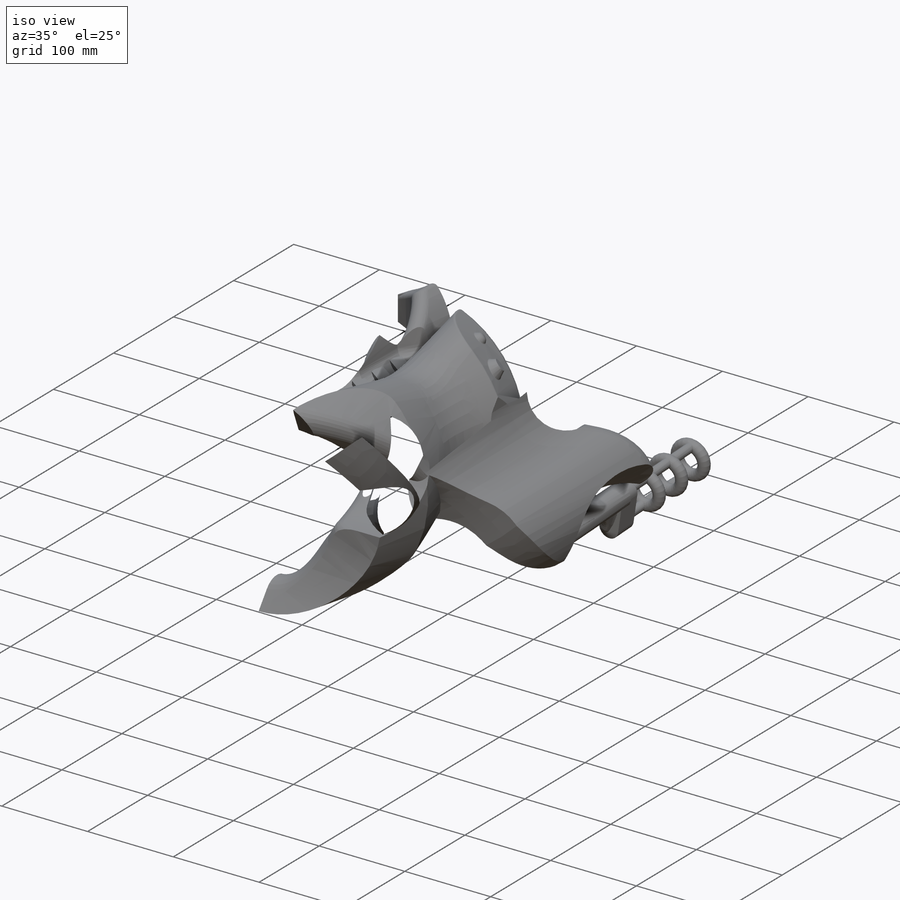
[diagram: iso view]
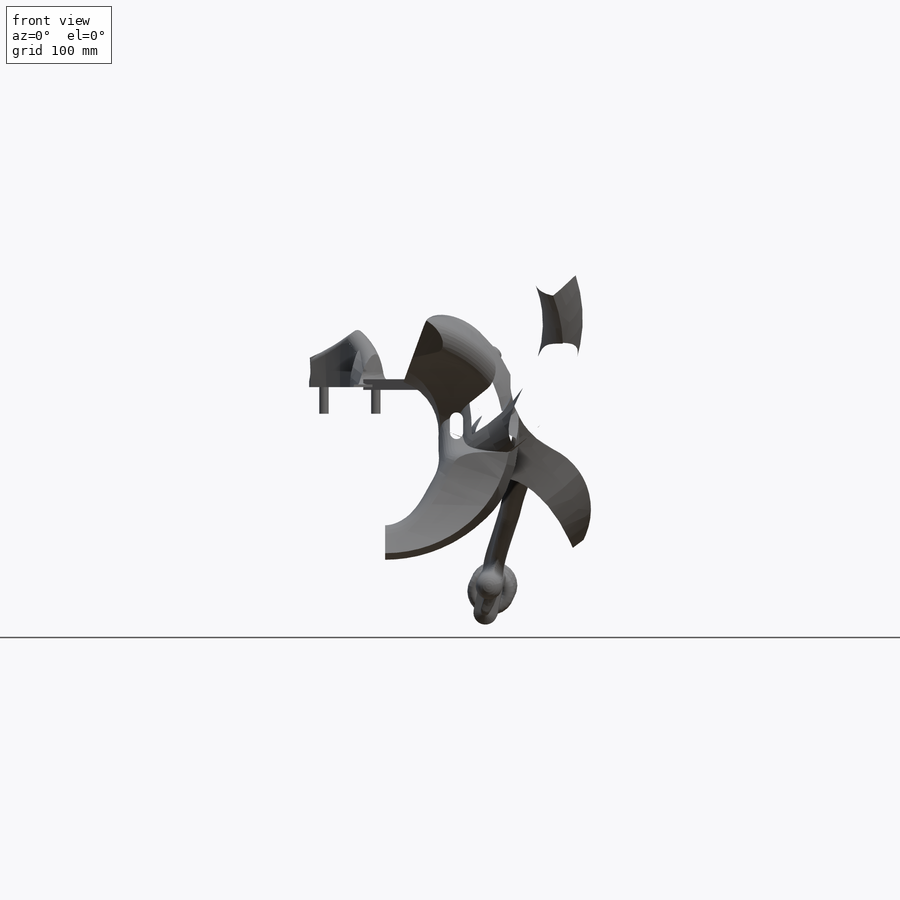
[diagram: front view]
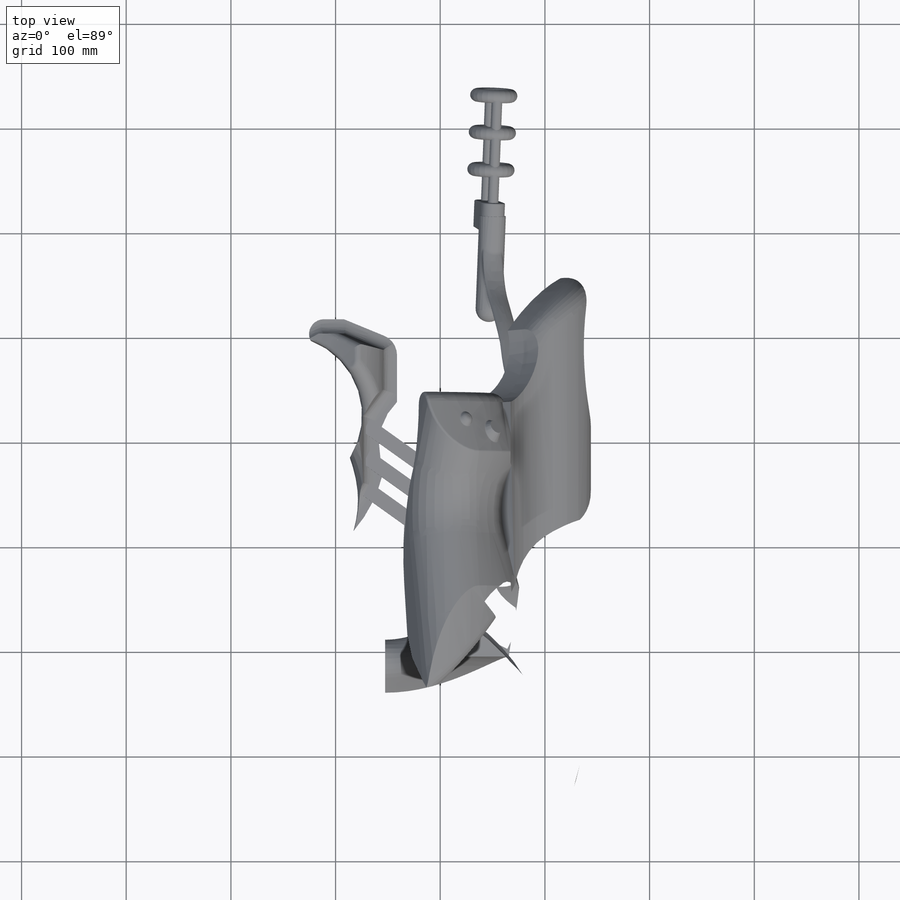
[diagram: top view]
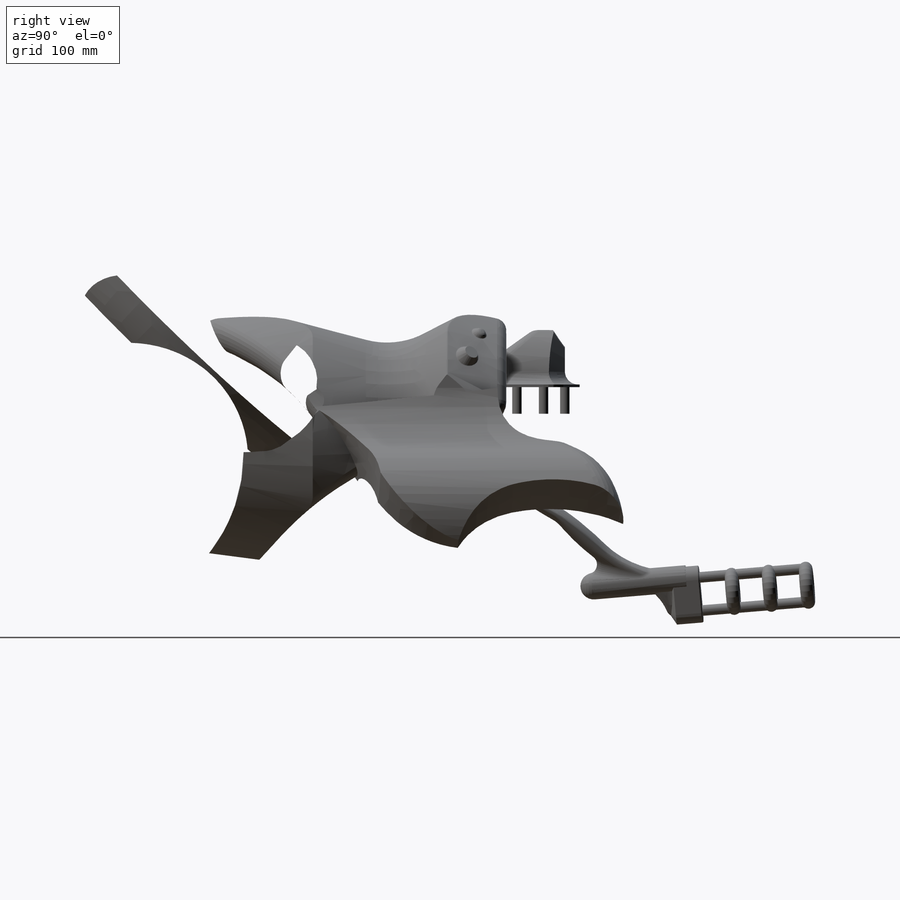
[diagram: right view]
SOLIDWORKS PART (.sldprt)
format: sldprt  version: not decoded by parser v0  size: 3,297,280 bytes
history: native  units: mm
features: sketch x32, fillet x27, mirror x15, plane x15, extrude x10, cut_extrude x9, revolve x4, material x1, cut_revolve x1, pattern_linear x1, sweep x1 (+13 scaffold rows collapsed)
feature tree (129):
  scaffold x13  (default folders/planes/origin — collapsed)
  material  "Material <not specified>"
  sketch  "Sketch1"  dims[D1=152.4mm D2=12.7mm]
  extrude  "Boss-Extrude1"  Depth=2.54mm
  sketch  "Sketch2"  dims[D4=8.89mm D12=304.8mm D16=127.0mm D17=57.15mm D1=49.53mm D2=20.32mm D3=25.4mm D5=88.9mm D6=19.05mm D7=20.32mm D8=88.9mm D9=25.4mm D10=127.0mm D11=19.05mm D13=12.7mm D14=63.5mm D15=44.45mm]
  extrude  "Boss-Extrude2"  Depth=2.54mm
  mirror  "Mirror1"
  sketch  "Sketch3"
  extrude  "Boss-Extrude3"  Depth=25.4mm
  sketch  "Sketch4"  dims[D1=12.7mm D2=12.7mm D3=38.1mm D4=25.4mm D5=19.05mm D6=63.5mm]
  revolve  "Revolve1"  Angle=180deg
  sketch  "Sketch5"  dims[c1.D6=177.8mm c1.D1=~43.702714mm c2.D1=30.0deg c2.D2=50.8mm c2.D3=11.43mm c2.D4=31.75mm c2.D5=30.48mm]
  cut_extrude  "Cut-Extrude1"  [1 undecoded]
  sketch  "Sketch6"  dims[D1=38.1mm D2=241.3mm]
  cut_revolve  "Cut-Revolve1"  Angle=360deg
  fillet  "Fillet1"  Radius=38.1mm
  fillet  "Fillet2"  Radius=12.7mm
  fillet  "Fillet3"  Radius=63.5mm
  sketch  "Sketch7"  dims[D1=6.35mm D2=12.7mm D3=63.5mm D4=88.9mm D6=30.48mm D5=3.0]
  extrude  "Boss-Extrude4"  Depth=10.16mm
  mirror  "Mirror2"
  sketch  "Sketch9"  dims[D1=76.2mm]
  cut_extrude  "Cut-Extrude2"  [1 undecoded]
  mirror  "Mirror3"
  fillet  "Fillet5"  Radius=10.16mm
  plane  "Plane1"  Offset=50.8mm
  sketch  "Sketch11"  dims[c1.D4=152.4mm c1.D7=~123.302563mm c1.D1=20.32mm c1.D2=12.7mm c1.D3=20.32mm c1.D5=101.6mm c1.D6=12.7mm c2.D7=19.05mm c2.D8=25.4mm c2.D9=63.5mm c2.D10=20.32mm c2.D11=20.32mm c2.D12=10.16mm c2.D13=57.15mm c2.D14=50.8mm c2.D15=12.7mm c2.D16=63.5mm c2.D17=38.1mm c2.D18=50.8mm c2.D19=200.66mm c2.D20=147.32mm]
  revolve  "Revolve3"  Angle=70deg
  mirror  "Mirror4"
  sketch  "Sketch12"  dims[D2=304.8mm D1=165.1mm]
  cut_extrude  "Cut-Extrude3"  Depth=10.16mm
  fillet  "Fillet6"  Radius=38.1mm
  fillet  "Fillet7"  Radius=12.7mm
  fillet  "Fillet9"  Radius=38.1mm
  fillet  "Fillet10"  Radius=2.54mm
  fillet  "Fillet11"  Radius=20.32mm
  plane  "Plane2"
  sketch  "Sketch13"  dims[D5=25.4mm D6=20.32mm D1=31.75mm D2=11.43mm D3=114.3mm D4=168.91mm]
  extrude  "Boss-Extrude5"  Depth=5.08mm
  fillet  "Fillet14"  Radius=5.08mm
  fillet  "Fillet15"  Radius=1.27mm
  mirror  "Mirror6"
  fillet  "Fillet16"  Radius=5.08mm
  fillet  "Fillet18"  Radius=1.27mm
  sketch  "Sketch14"  dims[D3=190.5mm D4=76.2mm D5=152.4mm D1=33.02mm D2=96.52mm D6=25.4mm]
  cut_extrude  "Cut-Extrude4"  Depth=2.54mm
  fillet  "Fillet19"  Radius=15.24mm
  fillet  "Fillet21"  Radius=15.24mm
  plane  "Plane3"
  sketch  "Sketch15"  dims[c1.D11=55.88mm c1.D12=152.4mm c1.D13=152.4mm c1.D14=101.6mm c1.D15=127.0mm c1.D1=63.5mm c1.D2=88.9mm c1.D3=76.2mm c1.D4=50.8mm c1.D5=50.8mm c1.D6=38.1mm c1.D7=106.68mm c1.D8=12.7mm c1.D9=50.8mm c1.D10=76.2mm c1.D16=~232.012585mm c2.D16=5.0deg]
  revolve  "Revolve4"  Angle=25deg
  plane  "Plane4"  Offset=76.2mm
  sketch  "Sketch16"  dims[D4=101.6mm D5=71.12mm D6=203.2mm D1=12.7mm D2=45.72mm D3=80.01mm D7=203.2mm D8=190.5mm]
  cut_extrude  "Cut-Extrude5"  [1 undecoded]
  mirror  "Mirror7"
  plane  "Plane5"  Offset=198.12mm
  sketch  "Sketch17"  dims[D1=254.0mm]
  cut_extrude  "Cut-Extrude6"  [1 undecoded]
  mirror  "Mirror8"
  fillet  "Fillet22"  Radius=27.94mm
  fillet  "Fillet23"  Radius=40.64mm
  fillet  "Fillet24"  Radius=12.7mm
  fillet  "Fillet25"  Radius=63.5mm
  fillet  "Fillet26"  Radius=19.05mm
  sketch  "Sketch18"  dims[D2=381.0mm D1=203.2mm]
  cut_extrude  "Cut-Extrude7"  Depth=157.48mm
  fillet  "Fillet27"  Radius=5.08mm
  sketch  "Sketch20"  dims[D1=177.8mm]
  plane  "Plane6"
  sketch  "Sketch21"  dims[c1.D5=381.0mm c1.D1=88.9mm c1.D2=101.6mm c1.D3=43.18mm c1.D4=50.8mm c2.D3=63.5mm c2.D4=19.05mm]
  plane  "Plane7"
  sketch  "Sketch22"  dims[c1.D3=8.89mm c1.D5=88.9mm c1.D6=~74.516886mm c1.D1=6.35mm c1.D2=31.75mm c1.D4=1.27mm c2.D6=~2.153812mm]
  plane  "Plane8"
  sketch  "Sketch23"  dims[c1.D3=11.43mm c1.D7=~10.724231mm c1.D8=9.652mm c1.D5=12.7mm c2.D8=~10.159316mm c2.D7=10.16mm c2.D1=25.4mm c2.D2=19.05mm c2.D4=3.81mm c2.D5=1.27mm c2.D6=2.54mm c3.D7=9.652mm c3.D8=9.271mm]
  plane  "Plane9"
  sketch  "Sketch24"  dims[D1=25.4mm D2=63.5mm D3=50.8mm]
  plane  "Plane10"
  sketch  "Sketch25"  dims[D2=152.4mm D1=12.7mm D3=8.89mm D4=11.43mm D5=76.2mm D6=54.61mm D7=0.254mm D8=1.27mm D9=6.35mm]
  mirror  "Mirror9"
  sketch  "Sketch26"  dims[D1=25.4mm]
  extrude  "Boss-Extrude6"  Depth=12.7mm
  mirror  "Mirror10"
  fillet  "Fillet28"  Radius=12.7mm
  fillet  "Fillet29"  Radius=10.16mm
  sketch  "Sketch27"  dims[D1=11.43mm]
  extrude  "Boss-Extrude7"  Depth=25.4mm
  mirror  "Mirror11"
  fillet  "Fillet30"  Radius=1.27mm
  sketch  "Sketch28"  dims[D1=10.16mm]
  extrude  "Boss-Extrude8"  Depth=101.6mm
  mirror  "Mirror12"
  plane  "Plane11"
  sketch  "Sketch29"  dims[D1=12.7mm]
  revolve  "Revolve5"  Angle=360deg
  pattern_linear  "LPattern1"  Count1=3 Count2=1 Spacing1=35.56mm Spacing2=2.54mm
  mirror  "Mirror13"
  plane  "Plane12"
  plane  "Plane13"  Offset=38.1mm
  sketch  "Sketch30"  dims[c1.D9=34.29mm c1.D10=44.45mm c1.D12=63.5mm c1.D13=50.8mm c1.D1=54.61mm c1.D2=19.05mm c1.D3=29.21mm c1.D4=76.2mm c1.D5=20.32mm c1.D6=19.05mm c1.D7=45.72mm c1.D8=50.8mm c1.D11=12.7mm c1.D14=~30.332993mm c2.D14=25.0deg]
  plane  "Plane14"
  sketch  "Sketch31"  dims[D5=228.6mm D1=2.54mm D2=21.59mm D3=11.43mm D4=215.9mm]
  sweep  "Sweep1"
  mirror  "Mirror15"
  sketch  "Sketch33"  dims[D2=304.8mm D4=114.3mm D1=21.59mm D3=101.6mm]
  cut_extrude  "Cut-Extrude9"  Depth=101.6mm
  fillet  "Fillet31"  Radius=6.35mm
  fillet  "Fillet32"  Radius=60.96mm
  plane  "Plane15"  Offset=231.14mm
  sketch  "Sketch34"  dims[D1=25.4mm D2=12.7mm]
  extrude  "Boss-Extrude9"  Depth=101.6mm
  mirror  "Mirror16"
  sketch  "Sketch35"  dims[D1=38.1mm D2=5.08mm]
  extrude  "Boss-Extrude10"  Depth=12.7mm
  mirror  "Mirror17"
  fillet  "Fillet33"  Radius=6.35mm
  sketch  "Sketch19"
  cut_extrude  "Cut-Extrude8"  Depth=2.54mm
decode coverage: 78 of 100 modeling features carry decoded parameters
note: ~ marks probable driven/reference dimensions
note: 4 parameter values undecoded
summary: no parameter record found for 4 features
note: suppression state not decoded; provenance and decode notes live in map.json
